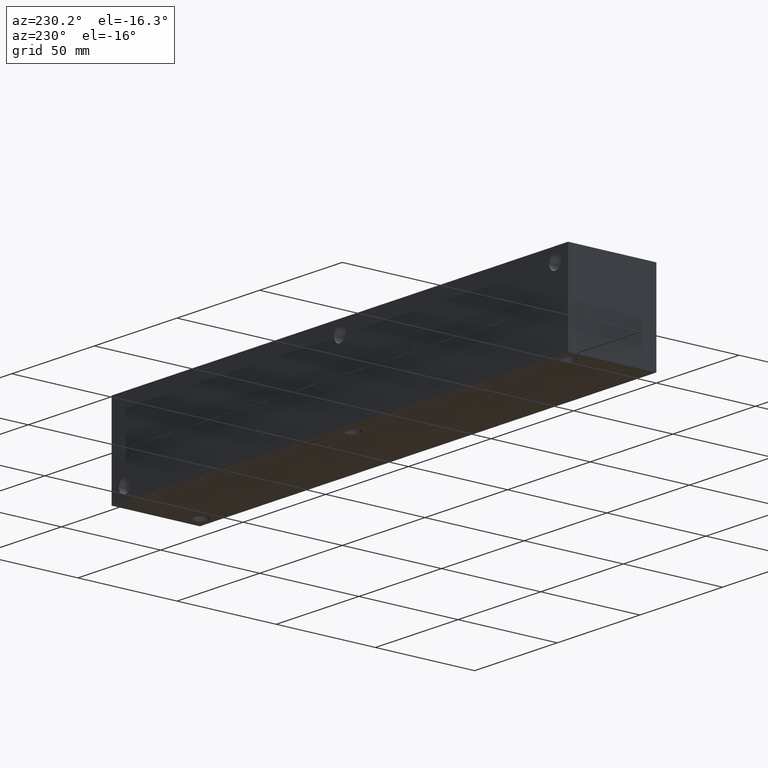
[diagram: clean part render]
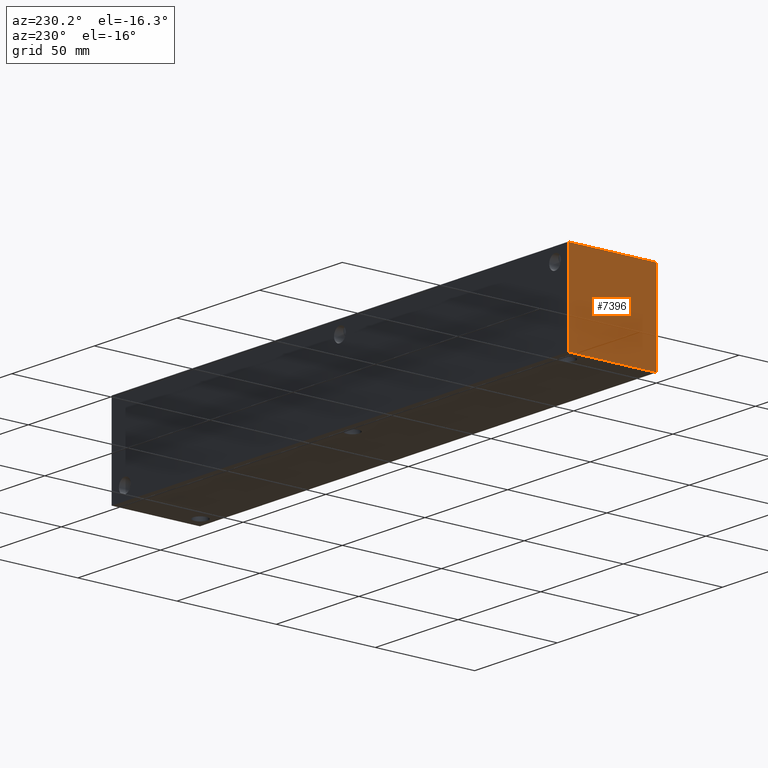
[diagram: same view with one face highlighted and labeled with its STEP entity id]
A machine part, auxiliary view. The second image highlights one B-rep face of the part: STEP entity #7396.
In plain terms, the highlighted planar face has unit normal (-1, 0, 0).
Its self-contained STEP definition (entity closure, byte-faithful):
#458=PLANE('',#7794);
#835=FACE_OUTER_BOUND('',#1263,.T.);
#1263=EDGE_LOOP('',(#6570,#6571,#6572,#6573));
#1539=LINE('',#11465,#2228);
#1965=LINE('',#12720,#2654);
#1966=LINE('',#12721,#2655);
#1967=LINE('',#12722,#2656);
#2228=VECTOR('',#8181,10.);
#2654=VECTOR('',#9241,10.);
#2655=VECTOR('',#9242,10.);
#2656=VECTOR('',#9243,10.);
#3176=VERTEX_POINT('',#11458);
#3179=VERTEX_POINT('',#11463);
#3562=VERTEX_POINT('',#12718);
#3563=VERTEX_POINT('',#12719);
#4019=EDGE_CURVE('',#3179,#3176,#1539,.T.);
#4575=EDGE_CURVE('',#3562,#3563,#1965,.T.);
#4576=EDGE_CURVE('',#3563,#3176,#1966,.T.);
#4577=EDGE_CURVE('',#3562,#3179,#1967,.T.);
#6570=ORIENTED_EDGE('',*,*,#4575,.T.);
#6571=ORIENTED_EDGE('',*,*,#4576,.T.);
#6572=ORIENTED_EDGE('',*,*,#4019,.F.);
#6573=ORIENTED_EDGE('',*,*,#4577,.F.);
#7396=ADVANCED_FACE('',(#835),#458,.T.);
#7794=AXIS2_PLACEMENT_3D('',#12717,#9239,#9240);
#8181=DIRECTION('',(0.,-1.,0.));
#9239=DIRECTION('center_axis',(-1.,0.,0.));
#9240=DIRECTION('ref_axis',(0.,-1.,0.));
#9241=DIRECTION('',(0.,-1.,0.));
#9242=DIRECTION('',(0.,0.,1.));
#9243=DIRECTION('',(0.,0.,1.));
#11458=CARTESIAN_POINT('',(0.,0.,44.45));
#11463=CARTESIAN_POINT('',(0.,44.45,44.45));
#11465=CARTESIAN_POINT('',(0.,44.45,44.45));
#12717=CARTESIAN_POINT('Origin',(0.,44.45,0.));
#12718=CARTESIAN_POINT('',(0.,44.45,0.));
#12719=CARTESIAN_POINT('',(0.,0.,0.));
#12720=CARTESIAN_POINT('',(0.,44.45,0.));
#12721=CARTESIAN_POINT('',(0.,0.,0.));
#12722=CARTESIAN_POINT('',(0.,44.45,0.));